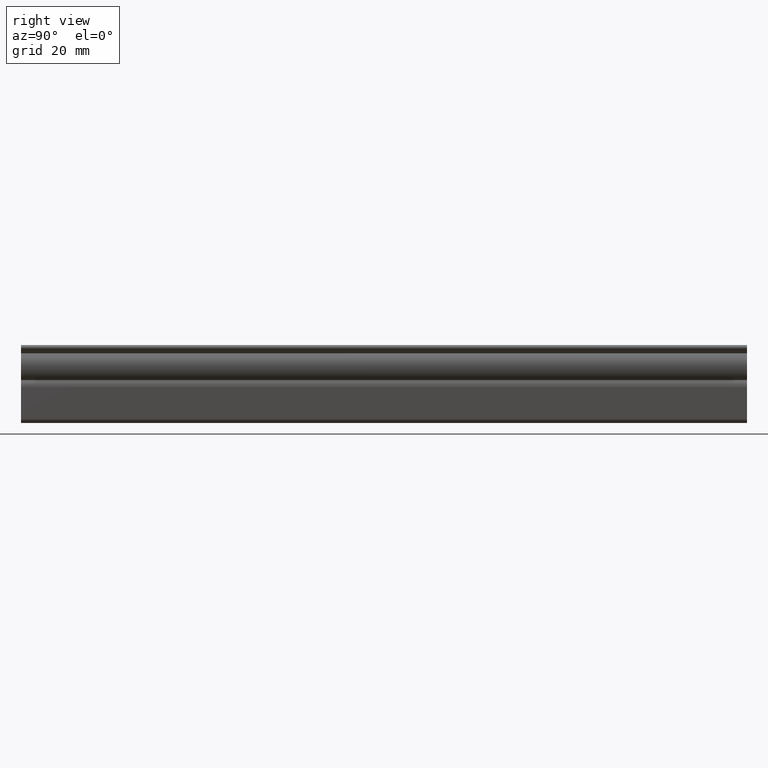
[diagram: clean part render]
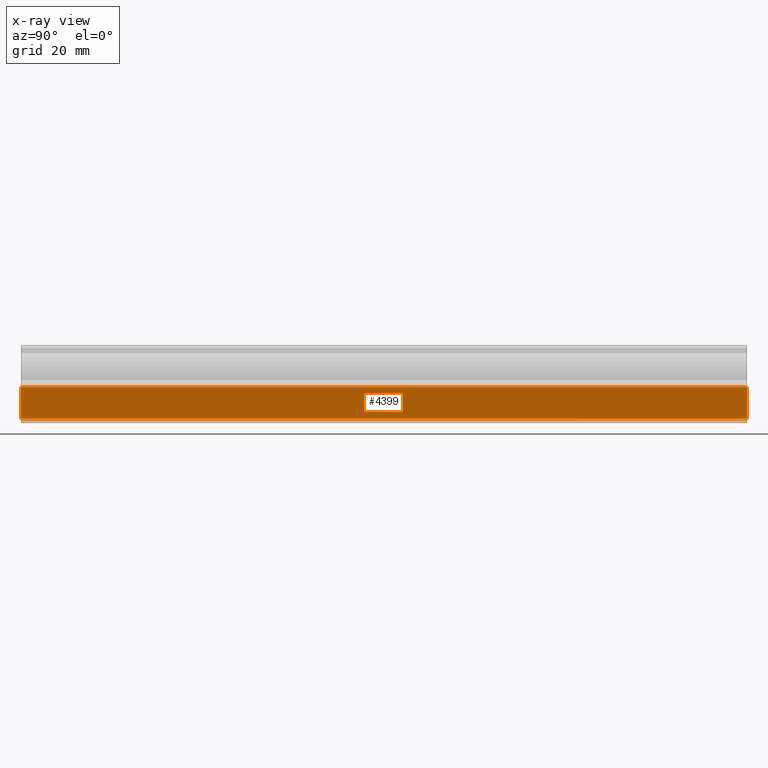
[diagram: x-ray — body ghosted, one internal face saturated and labeled with its STEP entity id]
A machine part, right view, then the same camera in x-ray: the body is ghosted and one INTERNAL B-rep face — a face not visible from any outside direction — is saturated and labeled: STEP entity #4399.
In plain terms, the highlighted face is a freeform B-spline surface patch.
Its self-contained STEP definition (entity closure, byte-faithful):
#3449=CARTESIAN_POINT('',(-3.996700841700040,0.0,-20.307414607798801));
#3450=VERTEX_POINT('',#3449);
#3755=CARTESIAN_POINT('',(-4.496700841699545,0.0,-11.613194973417899));
#3756=VERTEX_POINT('',#3755);
#3770=CARTESIAN_POINT('',(-4.496700841699545,0.0,-11.613194973417899));
#3771=CARTESIAN_POINT('',(-3.996700841700040,0.0,-20.307414607798801));
#3772=QUASI_UNIFORM_CURVE('',1,(#3770,#3771),.UNSPECIFIED.,.F.,.U.);
#3773=EDGE_CURVE('',#3756,#3450,#3772,.T.);
#3917=CARTESIAN_POINT('',(-3.996700841700040,200.0,-20.307414607798801));
#3918=VERTEX_POINT('',#3917);
#3938=CARTESIAN_POINT('',(-4.496700841699545,200.0,-11.613194973417899));
#3939=VERTEX_POINT('',#3938);
#3940=CARTESIAN_POINT('',(-4.496700841699545,200.0,-11.613194973417899));
#3941=CARTESIAN_POINT('',(-3.996700841700040,200.0,-20.307414607798801));
#3942=QUASI_UNIFORM_CURVE('',1,(#3940,#3941),.UNSPECIFIED.,.F.,.U.);
#3943=EDGE_CURVE('',#3939,#3918,#3942,.T.);
#4380=CARTESIAN_POINT('',(-3.971725816293646,-9.989999612361194,-20.741691320313869));
#4381=CARTESIAN_POINT('',(-4.521675817932430,-9.989999612361194,-11.178919115959051));
#4382=CARTESIAN_POINT('',(-3.971725816293646,209.990004976779200,-20.741691320313869));
#4383=CARTESIAN_POINT('',(-4.521675817932430,209.990004976779200,-11.178919115959051));
#4384=B_SPLINE_SURFACE_WITH_KNOTS('',1,1,((#4380,#4382),(#4381,#4383)),.UNSPECIFIED.,.F.,.F.,.U.,(2,2),(2,2),(0.0,9.578572818363057),(0.0,219.980004589140410),.UNSPECIFIED.);
#4385=ORIENTED_EDGE('',*,*,#3773,.F.);
#4386=CARTESIAN_POINT('',(-4.496700841699545,200.0,-11.613194973417899));
#4387=CARTESIAN_POINT('',(-4.496700841699545,0.0,-11.613194973417899));
#4388=QUASI_UNIFORM_CURVE('',1,(#4386,#4387),.UNSPECIFIED.,.F.,.U.);
#4389=EDGE_CURVE('',#3939,#3756,#4388,.T.);
#4390=ORIENTED_EDGE('',*,*,#4389,.F.);
#4391=ORIENTED_EDGE('',*,*,#3943,.T.);
#4392=CARTESIAN_POINT('',(-3.996700841700040,200.0,-20.307414607798801));
#4393=CARTESIAN_POINT('',(-3.996700841700040,0.0,-20.307414607798801));
#4394=QUASI_UNIFORM_CURVE('',1,(#4392,#4393),.UNSPECIFIED.,.F.,.U.);
#4395=EDGE_CURVE('',#3918,#3450,#4394,.T.);
#4396=ORIENTED_EDGE('',*,*,#4395,.T.);
#4397=EDGE_LOOP('',(#4385,#4390,#4391,#4396));
#4398=FACE_OUTER_BOUND('',#4397,.T.);
#4399=ADVANCED_FACE('',(#4398),#4384,.T.);